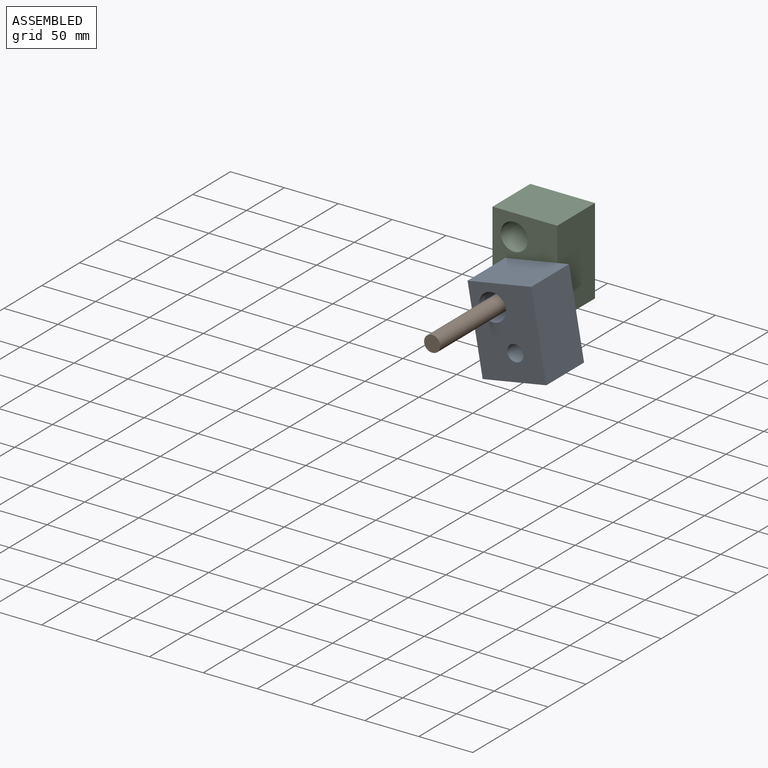
[diagram: assembled view]
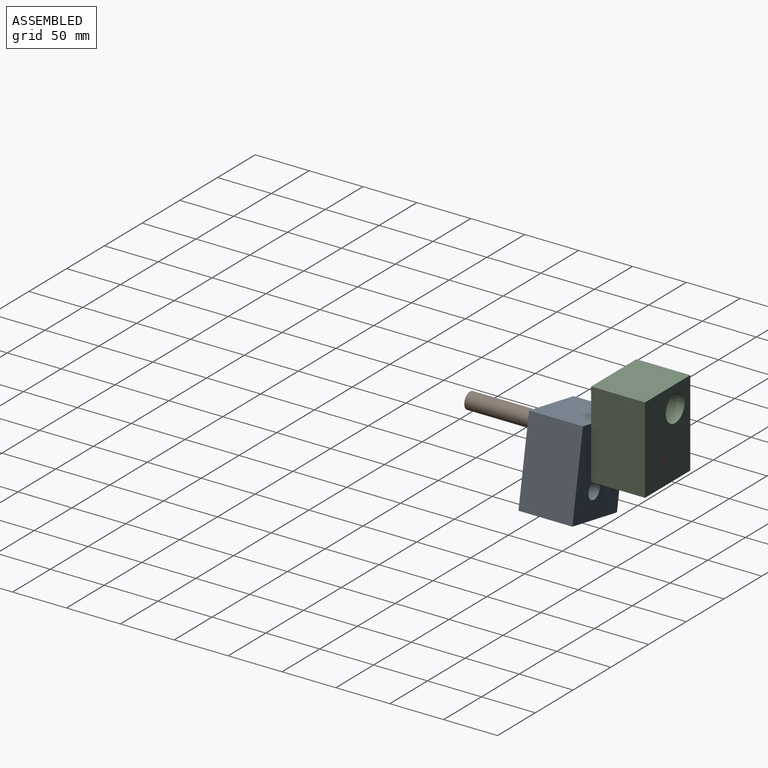
[diagram: assembled view, second angle]
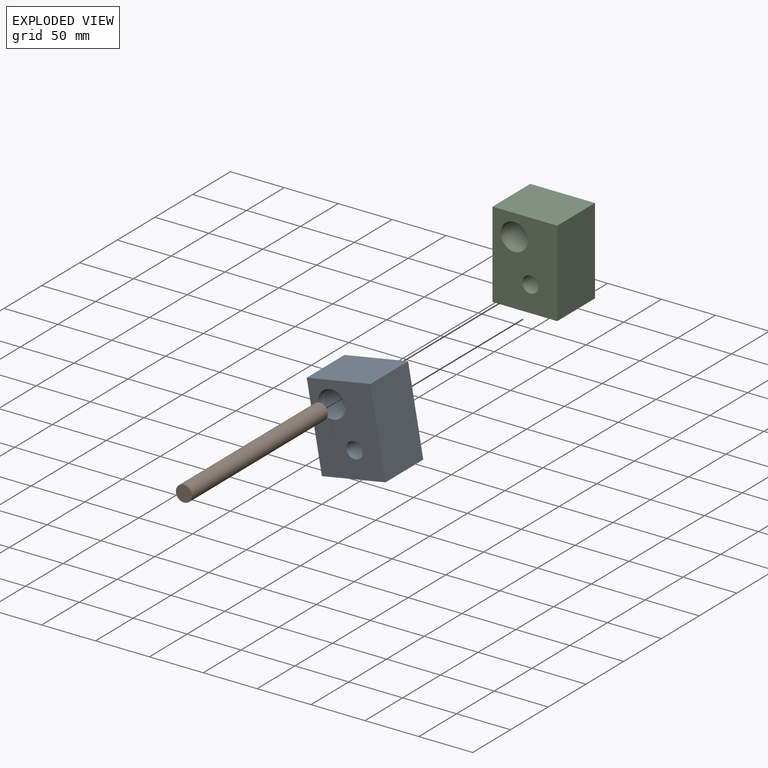
[diagram: exploded view]
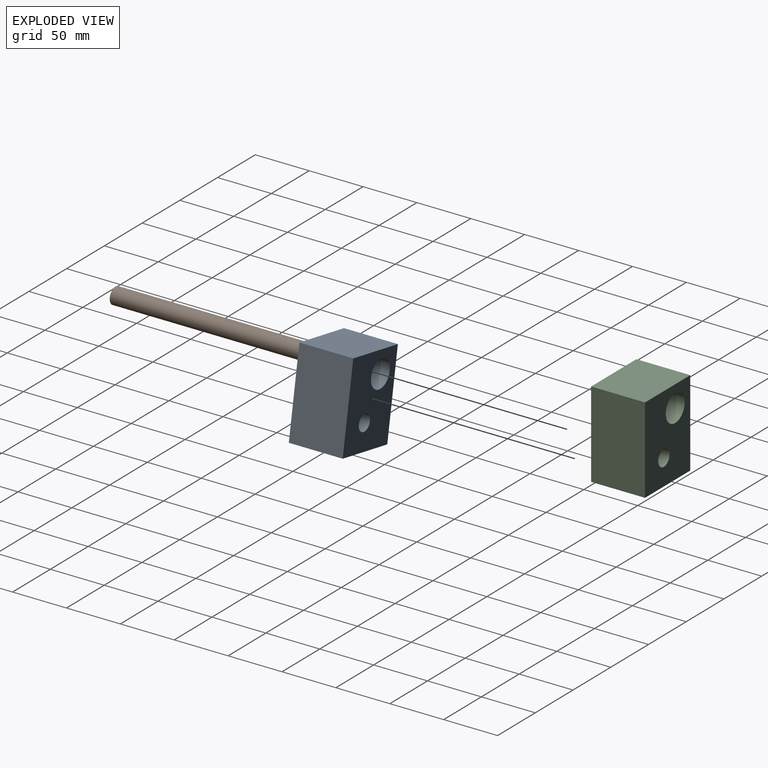
[diagram: exploded view, second angle]
ASSEMBLY  parts=3 mates=4
PART A: 8 faces, bbox 60x50x80 mm
  f0: plane 60x50mm, normal (0,0,1), area 3000mm2, adj f1,f3,f4,f5
  f1: plane 80x50mm, normal (-1,0,0), area 4000mm2, adj f0,f2,f4,f5
  f2: plane 60x50mm, normal (0,0,-1), area 3000mm2, adj f1,f3,f4,f5
  f3: plane 80x50mm, normal (1,0,0), area 4000mm2, adj f0,f2,f4,f5
  f4: plane 80x60mm, normal (0,-1,0), area 4132.4mm2, adj f0,f1,f2,f3,f6,f7
  f5: plane 80x60mm, normal (0,1,0), area 4132.4mm2, adj f0,f1,f2,f3,f6,f7
  f6: cylinder r=7.5mm len=50mm, axis (0,-1,0), area 2356.2mm2, adj f4,f5
  f7: cylinder r=12.5mm len=50mm, axis (0,-1,0), area 3927mm2, adj f4,f5
PART B: 3 faces, bbox 15x180x15 mm
  f0: cylinder r=7.5mm len=180mm, axis (0,1,0), area 8482.3mm2, adj f1,f2
  f1: plane 15x15mm, normal (0,-1,0), area 176.7mm2, adj f0
  f2: plane 15x15mm, normal (0,1,0), area 176.7mm2, adj f0
PART C: same geometry as A
PLACE A rot(axis=(0,-1,0),10.1deg) t=(-52.22,-76.59,-59.14)mm
PLACE B rot(axis=(0,-1,0),16deg) t=(-65.58,-91.59,-41.21)mm
PLACE C t=(-70.58,-26.59,-25.21)mm fixed
MATE planar B.f0 <-> C.f5  axis (0,1,0) through (-65.58,-1.59,-41.21)mm
MATE cylindrical A.f7 <-> C.f6  axis (0,-1,0) through (-65.58,-76.59,-41.21)mm
MATE cylindrical B.f0 <-> C.f6  axis (0,1,0) through (-65.58,-91.59,-41.21)mm
MATE planar C.f4 <-> A.f5  axis (0,-1,0) through (-69.6,-51.59,-26.9)mm
